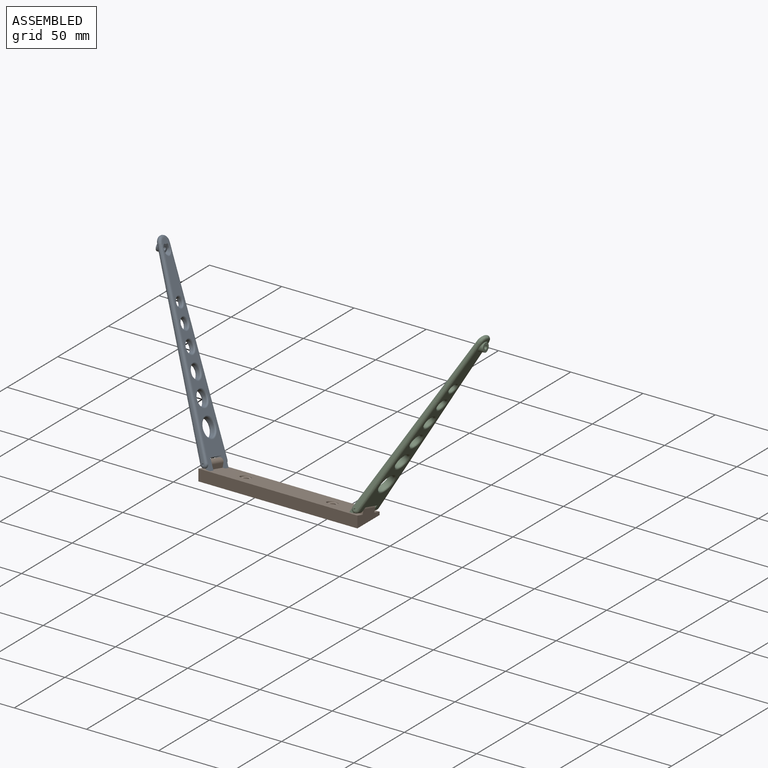
[diagram: assembled view]
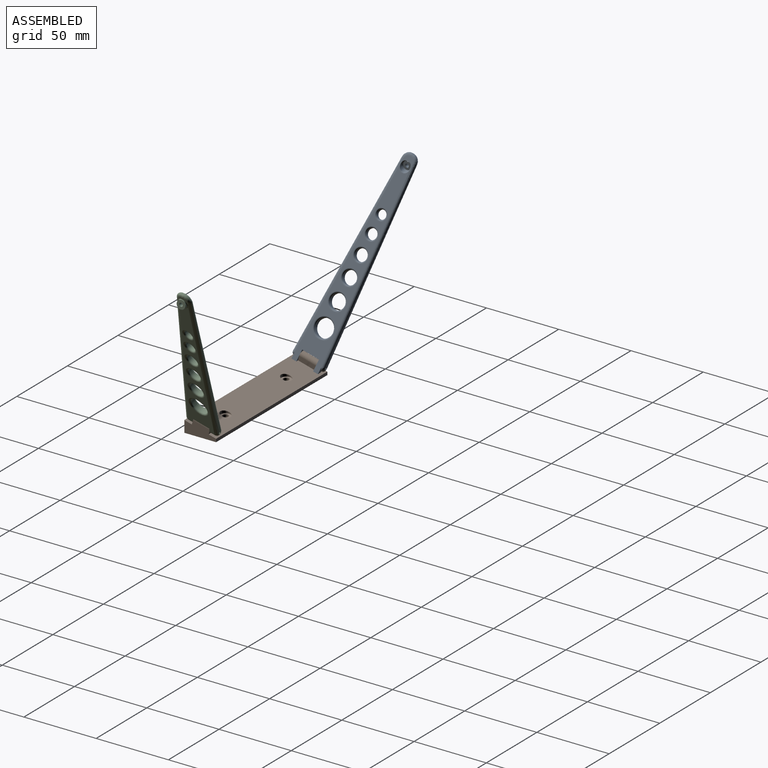
[diagram: assembled view, second angle]
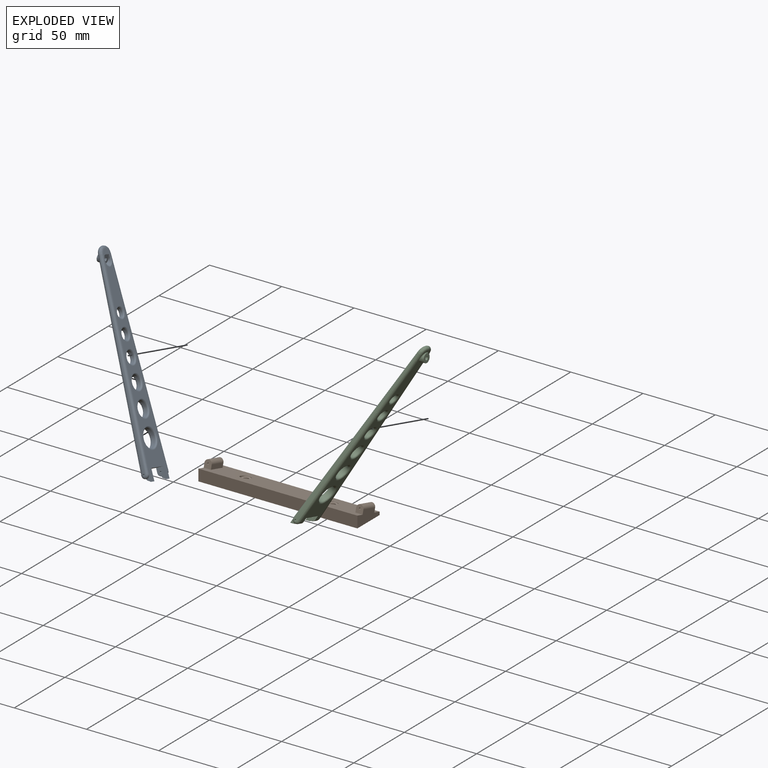
[diagram: exploded view]
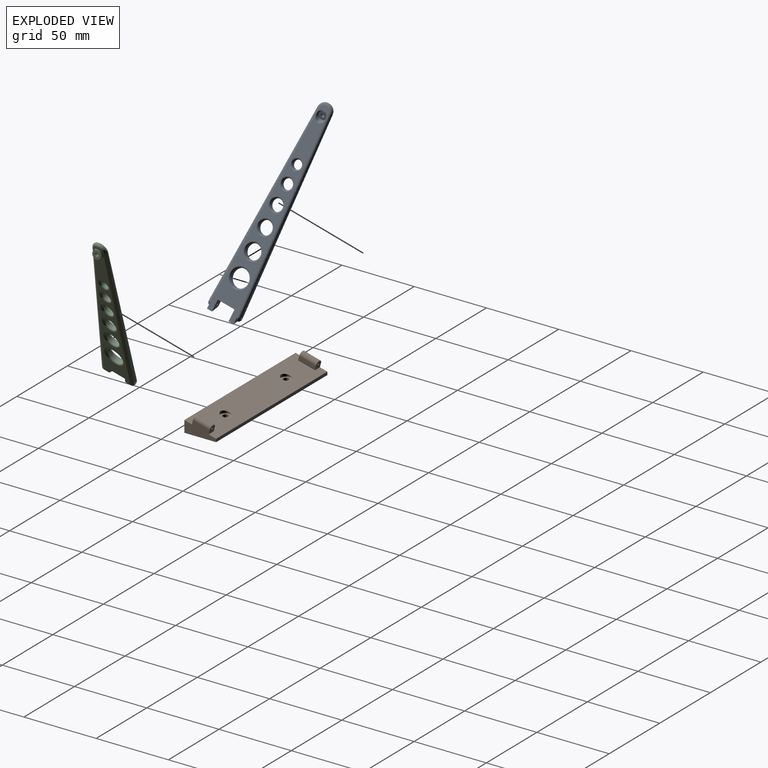
[diagram: exploded view, second angle]
ASSEMBLY  parts=3 mates=2
PART A: 72 faces, bbox 23.1x137.3x6.9 mm
  f0: plane 6.75x3.76mm, normal (0,-0.01,1), area 6.4mm2, adj f8,f10,f22,f24,f26,f60,f62,f64
  f1: plane 3.5x2.48mm, normal (0,0.87,0.5), area 10mm2, adj f2,f5,f11,f56
  f2: plane 3.5x0.16mm, normal (0,0,1), area 0.6mm2, adj f1,f11,f56,f59
  f3: bspline ~2.59x2.55mm, area 9.1mm2, adj f9,f25,f27,f56
  f4: plane 7.01x6.5mm, normal (0,0,-1), area 21mm2, adj f19,f20,f21,f23,f25,f34,f35
  f5: plane 128.77x19.02mm, normal (0,0,-1), area 1028.8mm2, adj f1,f11,f12,f13,f19,f25,f34,f48
  f6: bspline ~2.59x2.52mm, area 9.1mm2, adj f7,f19,f28,f57
  f7: bspline ~2.61x2.5mm, area 9.2mm2, adj f6,f8,f17,f28,f57
  f8: bspline ~127.71x8.04mm, area 386.9mm2, adj f0,f7,f14,f16,f19,f22,f28,f61
  f9: bspline ~2.61x2.5mm, area 9.2mm2, adj f3,f10,f18,f27,f56
  f10: bspline ~127.71x8.04mm, area 386.9mm2, adj f0,f9,f15,f16,f25,f26,f27,f65
  f11: plane 7.63x4.97mm, normal (-1,0,0), area 28.3mm2, adj f1,f2,f5,f12,f16,f18,f27,f59
  f12: plane 12x4.92mm, normal (0,1,0), area 59.1mm2, adj f5,f11,f13,f16
  f13: plane 7.63x4.97mm, normal (1,0,0), area 28.3mm2, adj f5,f12,f16,f17,f28,f54,f55,f58
  f14: plane 83.43x4.02mm, normal (-1,-0.05,0), area 48.2mm2, adj f8,f19,f28
  f15: plane 83.44x4.03mm, normal (1,-0.05,0), area 47.6mm2, adj f10,f25,f27
  f16: plane 125.1x18.95mm, normal (0,-0.01,1), area 1010mm2, adj f8,f10,f11,f12,f13,f17,f18,f42
  f17: cylinder r=2.5mm len=3.51mm, axis (1,0,0), area 12.1mm2, adj f7,f13,f16,f58
  f18: cylinder r=2.5mm len=3.51mm, axis (1,0,0), area 12.1mm2, adj f9,f11,f16,f59
  f19: bspline ~127.74x8.04mm, area 386.5mm2, adj f4,f5,f6,f8,f14,f20
  f20: bspline ~4.99x4.85mm, area 18mm2, adj f4,f19,f21,f22
  f21: bspline ~1.9x1.9mm, area 1.3mm2, adj f4,f20,f23,f24
  f22: bspline ~4.98x4.81mm, area 17.8mm2, adj f0,f8,f20,f24
  f23: bspline ~4.99x4.85mm, area 18mm2, adj f4,f21,f25,f26
  f24: bspline ~1.9x1.87mm, area 1.3mm2, adj f0,f21,f22,f26
  f25: bspline ~127.74x8.04mm, area 386.5mm2, adj f3,f4,f5,f10,f15,f23
  f26: bspline ~4.99x4.82mm, area 17.8mm2, adj f0,f10,f23,f24
  f27: cylinder r=0.6mm len=5.41mm, axis (-1,0,0), area 20.3mm2, adj f3,f9,f10,f11,f15
  f28: cylinder r=0.6mm len=5.41mm, axis (1,0,0), area 20.3mm2, adj f6,f7,f8,f13,f14
  f29: cylinder r=1.25mm len=4.89mm, axis (0,-0.51,0.86), area 33mm2, adj f31,f33
  f30: cylinder r=3mm len=6.67mm, axis (0,-0.51,0.86), area 33.2mm2, adj f31,f60,f61,f63,f64,f65
  f31: plane 6.03x5.18mm, normal (0,-0.51,0.86), area 23.4mm2, adj f29,f30,f62
  f32: cylinder r=3mm len=6mm, axis (0,0.51,-0.86), area 0mm2, adj f34,f68
  f33: plane 5.54x5.01mm, normal (0,0.51,-0.86), area 19.2mm2, adj f29,f66,f67,f68,f69,f70,f71
  f34: bspline ~7x6.51mm, area 10.9mm2, adj f4,f5,f32,f35,f67,f69
  f35: bspline ~5.78x1.49mm, area 2.5mm2, adj f4,f34,f66,f70,f71
  f36: cylinder r=6mm len=12mm, axis (0,0,-1), area 97.6mm2, adj f47,f48
  f37: cylinder r=5mm len=10mm, axis (0,0,-1), area 74.3mm2, adj f46,f49
  f38: cylinder r=4.5mm len=9mm, axis (0,0,-1), area 60.9mm2, adj f45,f50
  f39: cylinder r=4mm len=8mm, axis (0,0,-1), area 49.3mm2, adj f44,f51
  f40: cylinder r=3.5mm len=7mm, axis (0,0,-1), area 39.1mm2, adj f43,f52
  f41: cylinder r=3mm len=6mm, axis (0,0,-1), area 30.4mm2, adj f42,f53
  f42: bspline ~8x7.99mm, area 33.2mm2, adj f16,f41
  f43: bspline ~9x8.99mm, area 38.1mm2, adj f16,f40
  f44: bspline ~10x9.99mm, area 43.1mm2, adj f16,f39
  f45: bspline ~11x11mm, area 48mm2, adj f16,f38
  f46: bspline ~11.99x11.99mm, area 52.9mm2, adj f16,f37
  f47: bspline ~14x14mm, area 62.8mm2, adj f16,f36
  f48: torus R=7mm, axis (0,0,1), area 62.8mm2, adj f5,f36
  f49: torus R=6mm, axis (0,0,1), area 52.9mm2, adj f5,f37
  f50: torus R=5.5mm, axis (0,0,1), area 48mm2, adj f5,f38
  f51: torus R=5mm, axis (0,0,1), area 43.1mm2, adj f5,f39
  f52: torus R=4.5mm, axis (0,0,1), area 38.1mm2, adj f5,f40
  f53: torus R=4mm, axis (0,0,1), area 33.2mm2, adj f5,f41
  f54: plane 3.5x2.48mm, normal (0,0.87,0.5), area 10mm2, adj f5,f13,f55,f57
  f55: plane 3.5x0.16mm, normal (0,0,1), area 0.6mm2, adj f13,f54,f57,f58
  f56: plane 4.65x2.98mm, normal (1,0,0), area 4.9mm2, adj f1,f2,f3,f5,f9,f59
  f57: plane 4.65x2.98mm, normal (-1,0,0), area 4.9mm2, adj f5,f6,f7,f54,f55,f58
  f58: cylinder r=0.6mm len=3.51mm, axis (1,0,0), area 2.9mm2, adj f13,f17,f55,f57
  f59: cylinder r=0.6mm len=3.51mm, axis (1,0,0), area 2.9mm2, adj f2,f11,f18,f56
  f60: bspline ~2.44x1.8mm, area 2.4mm2, adj f0,f30,f61,f62
  f61: bspline ~2.05x0.69mm, area 1.3mm2, adj f8,f30,f60,f63
  f62: bspline ~3.72x0.93mm, area 3mm2, adj f0,f31,f60,f64
  f63: bspline ~6.91x3.46mm, area 6mm2, adj f16,f30,f61,f65
  f64: bspline ~2.44x1.8mm, area 2.4mm2, adj f0,f30,f62,f65
  f65: bspline ~2.22x0.75mm, area 1.3mm2, adj f10,f30,f63,f64
  f66: bspline ~1.8x1.09mm, area 0.2mm2, adj f33,f35,f67
  f67: bspline ~1.08x0.88mm, area 0.3mm2, adj f33,f34,f66,f68
  f68: torus R=2.7mm, axis (0,-0.51,0.86), area 5.6mm2, adj f32,f33,f67,f69
  f69: bspline ~1.22x0.99mm, area 0.3mm2, adj f33,f34,f68,f70
  f70: bspline ~1.8x1.09mm, area 0.3mm2, adj f33,f35,f69
  f71: bspline ~1.28x0.1mm, area 0mm2, adj f33,f35
PART B: 22 faces, bbox 110.4x22.4x12.3 mm
  f0: plane 110.39x22.39mm, normal (0,0.26,0.97), area 2305.8mm2, adj f1,f2,f3,f4,f7,f8,f9,f10
  f1: plane 22x9.5mm, normal (-1,0,0), area 147.1mm2, adj f0,f2,f4,f10,f11,f14,f17
  f2: plane 110x8mm, normal (0,-1,0), area 880mm2, adj f0,f1,f3,f17
  f3: plane 22x9.5mm, normal (1,0,0), area 147.1mm2, adj f0,f2,f4,f8,f9,f13,f17
  f4: plane 110x2.1mm, normal (0,1,0), area 231mm2, adj f0,f1,f3,f17
  f5: cylinder r=2mm len=4mm, axis (0,0,-1), area 50.3mm2, adj f17,f20
  f6: cylinder r=2mm len=4mm, axis (0,0,-1), area 50.3mm2, adj f17,f18
  f7: plane 12.37x6.01mm, normal (-1,0,0), area 36mm2, adj f0,f8,f9,f13
  f8: plane 5.31x5mm, normal (0,-0.97,0.26), area 23.7mm2, adj f0,f3,f7,f13,f16
  f9: plane 5.31x5mm, normal (0,0.97,-0.26), area 23.7mm2, adj f0,f3,f7,f13,f16
  f10: plane 5.31x5mm, normal (0,0.97,-0.26), area 23.7mm2, adj f0,f1,f12,f14,f15
  f11: plane 5.31x5mm, normal (0,-0.97,0.26), area 23.7mm2, adj f0,f1,f12,f14,f15
  f12: plane 12.37x6.01mm, normal (1,0,0), area 36mm2, adj f0,f10,f11,f14
  f13: cylinder r=2.5mm len=12.24mm, axis (0,0.97,-0.26), area 94.2mm2, adj f3,f7,f8,f9
  f14: cylinder r=2.5mm len=12.24mm, axis (0,-0.97,0.26), area 94.2mm2, adj f1,f10,f11,f12
  f15: cylinder r=0.6mm len=11.9mm, axis (0,-0.97,0.26), area 45.2mm2, adj f10,f11
  f16: cylinder r=0.6mm len=11.9mm, axis (0,-0.97,0.26), area 45.2mm2, adj f8,f9
  f17: plane 110x22mm, normal (0,0,-1), area 2394.9mm2, adj f1,f2,f3,f4,f5,f6
  f18: plane 7x7mm, normal (0,0,1), area 25.9mm2, adj f6,f19
  f19: cylinder r=3.5mm len=7mm, axis (0,0,-1), area 23.8mm2, adj f0,f18
  f20: plane 7x7mm, normal (0,0,1), area 25.9mm2, adj f5,f21
  f21: cylinder r=3.5mm len=7mm, axis (0,0,-1), area 23.8mm2, adj f0,f20
PART C: same geometry as A
PLACE A rot(axis=(-0.67,-0.57,0.47),146.1deg) t=(-49.3,0.87,-0.39)mm
PLACE B t=(-0.15,0.39,-5.25)mm fixed
PLACE C rot(axis=(-0.68,0.58,-0.45),147.7deg) t=(48.96,0.9,-0.26)mm
MATE revolute B.f14 <-> A.f27  axis (0,0.97,-0.26) through (-52.65,6.96,-0.85)mm
MATE revolute B.f13 <-> C.f27  axis (0,0.97,-0.26) through (52.35,6.96,-0.85)mm
